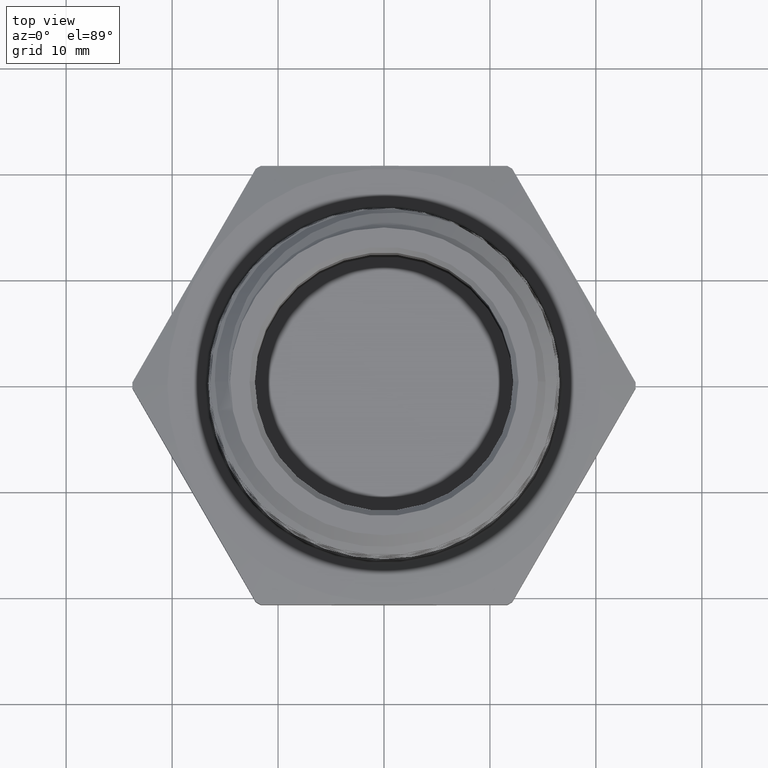
[diagram: clean part render]
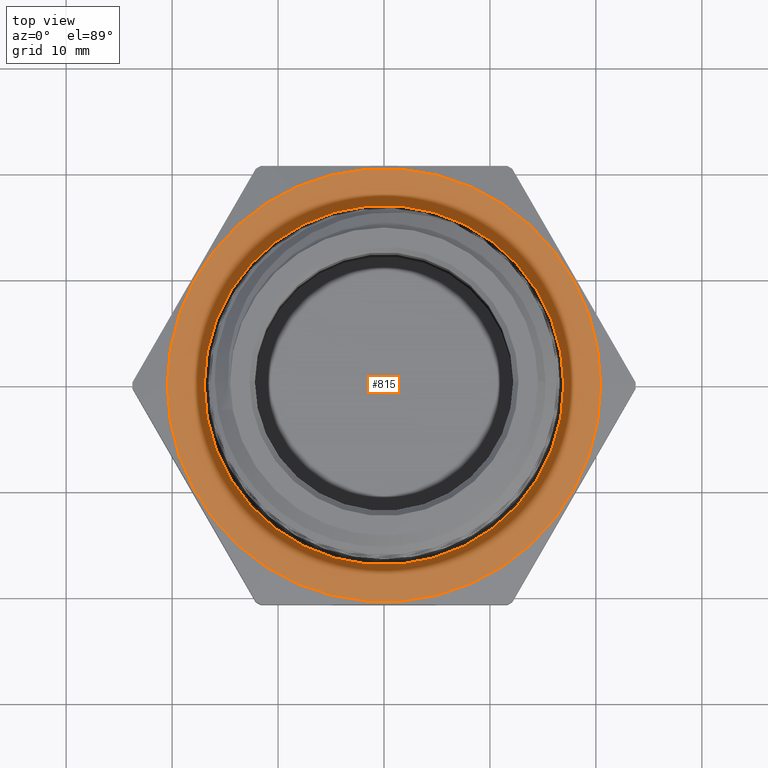
[diagram: same view with one face highlighted and labeled with its STEP entity id]
A machine part, top view. The second image highlights one B-rep face of the part: STEP entity #815.
In plain terms, the highlighted planar face has unit normal (-0, 0, 1).
Its self-contained STEP definition (entity closure, byte-faithful):
#8 = CIRCLE ( 'NONE', #3934, 0.6680000000000000400 ) ;
#71 = CIRCLE ( 'NONE', #3952, 0.8049999999999998300 ) ;
#98 = CIRCLE ( 'NONE', #3964, 0.8049999999999998300 ) ;
#99 = CIRCLE ( 'NONE', #3965, 0.6680000000000000400 ) ;
#815 = ADVANCED_FACE ( 'NONE', ( #6762, #6759 ), #6107, .T. ) ;
#1717 = EDGE_LOOP ( 'NONE', ( #4811, #4812 ) ) ;
#1719 = EDGE_LOOP ( 'NONE', ( #4830, #4810 ) ) ;
#3765 = EDGE_CURVE ( 'NONE', #4831, #4851, #8, .T. ) ;
#3831 = EDGE_CURVE ( 'NONE', #4801, #4837, #71, .T. ) ;
#3858 = EDGE_CURVE ( 'NONE', #4837, #4801, #98, .T. ) ;
#3859 = EDGE_CURVE ( 'NONE', #4851, #4831, #99, .T. ) ;
#3925 = AXIS2_PLACEMENT_3D ( 'NONE', #6109, #6110, #6105 ) ;
#3934 = AXIS2_PLACEMENT_3D ( 'NONE', #5703, #5702, #5701 ) ;
#3952 = AXIS2_PLACEMENT_3D ( 'NONE', #5215, #5216, #5217 ) ;
#3964 = AXIS2_PLACEMENT_3D ( 'NONE', #5487, #5488, #5489 ) ;
#3965 = AXIS2_PLACEMENT_3D ( 'NONE', #5492, #5493, #5494 ) ;
#4372 = CARTESIAN_POINT ( 'NONE',  ( -0.8049999999999998300, 0.0000000000000000000, 0.2000000000000000100 ) ) ;
#4388 = CARTESIAN_POINT ( 'NONE',  ( 0.8049999999999998300, 9.858406733136191200E-017, 0.1999999999999998200 ) ) ;
#4389 = CARTESIAN_POINT ( 'NONE',  ( 0.6680000000000000400, 0.0000000000000000000, 0.1999999999999999800 ) ) ;
#4404 = CARTESIAN_POINT ( 'NONE',  ( -0.6680000000000000400, 8.180640618304318600E-017, 0.1999999999999999800 ) ) ;
#4801 = VERTEX_POINT ( 'NONE', #4372 ) ;
#4810 = ORIENTED_EDGE ( 'NONE', *, *, #3858, .F. ) ;
#4811 = ORIENTED_EDGE ( 'NONE', *, *, #3765, .T. ) ;
#4812 = ORIENTED_EDGE ( 'NONE', *, *, #3859, .T. ) ;
#4830 = ORIENTED_EDGE ( 'NONE', *, *, #3831, .F. ) ;
#4831 = VERTEX_POINT ( 'NONE', #4389 ) ;
#4837 = VERTEX_POINT ( 'NONE', #4388 ) ;
#4851 = VERTEX_POINT ( 'NONE', #4404 ) ;
#5215 = CARTESIAN_POINT ( 'NONE',  ( 2.509973095904768000E-017, 0.0000000000000000000, 0.1999999999999999300 ) ) ;
#5216 = DIRECTION ( 'NONE',  ( -1.254986547952384500E-016, -0.0000000000000000000, -1.000000000000000000 ) ) ;
#5217 = DIRECTION ( 'NONE',  ( -1.000000000000000000, 0.0000000000000000000, 1.272599997048570100E-016 ) ) ;
#5487 = CARTESIAN_POINT ( 'NONE',  ( 2.509973095904768000E-017, 0.0000000000000000000, 0.1999999999999999300 ) ) ;
#5488 = DIRECTION ( 'NONE',  ( -1.254986547952384500E-016, -0.0000000000000000000, -1.000000000000000000 ) ) ;
#5489 = DIRECTION ( 'NONE',  ( -1.000000000000000000, 0.0000000000000000000, 1.272599997048570100E-016 ) ) ;
#5492 = CARTESIAN_POINT ( 'NONE',  ( 0.0000000000000000000, 0.0000000000000000000, 0.2000000000000000100 ) ) ;
#5493 = DIRECTION ( 'NONE',  ( 0.0000000000000000000, -0.0000000000000000000, -1.000000000000000000 ) ) ;
#5494 = DIRECTION ( 'NONE',  ( 1.000000000000000000, 0.0000000000000000000, 0.0000000000000000000 ) ) ;
#5701 = DIRECTION ( 'NONE',  ( 1.000000000000000000, 0.0000000000000000000, 0.0000000000000000000 ) ) ;
#5702 = DIRECTION ( 'NONE',  ( 0.0000000000000000000, -0.0000000000000000000, -1.000000000000000000 ) ) ;
#5703 = CARTESIAN_POINT ( 'NONE',  ( 0.0000000000000000000, 0.0000000000000000000, 0.2000000000000000100 ) ) ;
#6105 = DIRECTION ( 'NONE',  ( 1.000000000000000000, 0.0000000000000000000, 0.0000000000000000000 ) ) ;
#6107 = PLANE ( 'NONE',  #3925 ) ;
#6109 = CARTESIAN_POINT ( 'NONE',  ( -0.4705404693895448600, -0.8149999999999997200, 0.2000000000000000100 ) ) ;
#6110 = DIRECTION ( 'NONE',  ( -0.0000000000000000000, 0.0000000000000000000, 1.000000000000000000 ) ) ;
#6759 = FACE_OUTER_BOUND ( 'NONE', #1719, .T. ) ;
#6762 = FACE_BOUND ( 'NONE', #1717, .T. ) ;